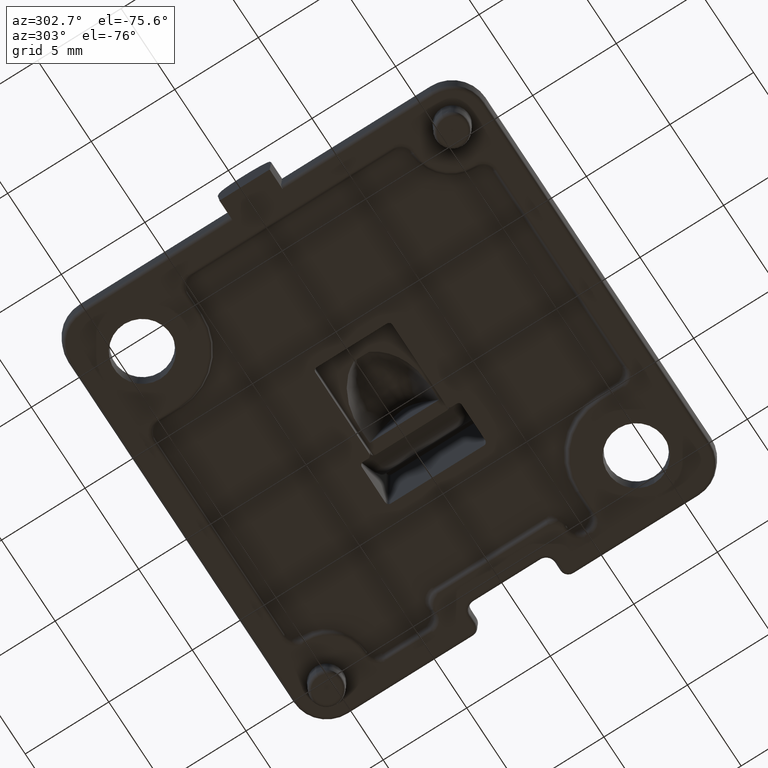
[diagram: clean part render]
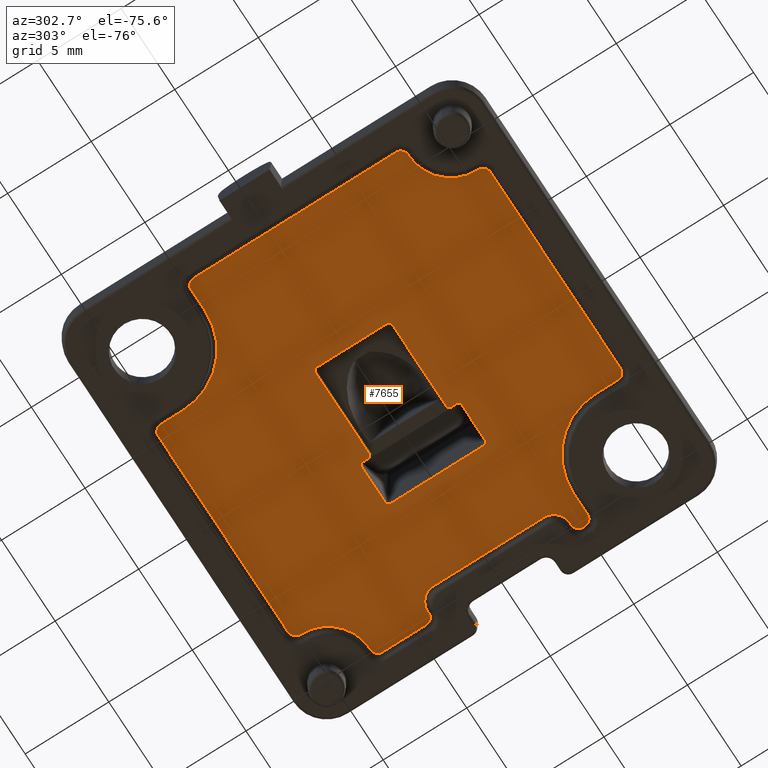
[diagram: same view with one face highlighted and labeled with its STEP entity id]
A machine part, auxiliary view. The second image highlights one B-rep face of the part: STEP entity #7655.
In plain terms, the highlighted planar face has unit normal (0, 0, 1).
Its self-contained STEP definition (entity closure, byte-faithful):
#4 = EDGE_CURVE ( 'NONE', #20, #4934, #1062, .T. ) ;
#9 = EDGE_CURVE ( 'NONE', #4079, #2434, #4165, .T. ) ;
#20 = VERTEX_POINT ( 'NONE', #2488 ) ;
#34 = VECTOR ( 'NONE', #7672, 1000.000000000000000 ) ;
#38 = ORIENTED_EDGE ( 'NONE', *, *, #629, .T. ) ;
#64 = LINE ( 'NONE', #5258, #2954 ) ;
#74 = CARTESIAN_POINT ( 'NONE',  ( 10.74810157545070800, -4.798375703292113500, 0.2999999999999999900 ) ) ;
#103 = EDGE_CURVE ( 'NONE', #7394, #1566, #3966, .T. ) ;
#119 = DIRECTION ( 'NONE',  ( -0.0000000000000000000, -0.0000000000000000000, -1.000000000000000000 ) ) ;
#193 = VERTEX_POINT ( 'NONE', #3403 ) ;
#242 =( BOUNDED_CURVE ( )  B_SPLINE_CURVE ( 3, ( #4660, #7163, #368, #4692 ),
 .UNSPECIFIED., .F., .F. ) 
 B_SPLINE_CURVE_WITH_KNOTS ( ( 4, 4 ),
 ( 2.356803477777896600, 3.926381829401569300 ),
 .UNSPECIFIED. ) 
 CURVE ( )  GEOMETRIC_REPRESENTATION_ITEM ( )  RATIONAL_B_SPLINE_CURVE ( ( 1.000000000000000000, 0.8050248461936601000, 0.8050248461936601000, 1.000000000000000000 ) ) 
 REPRESENTATION_ITEM ( '' )  );
#274 = DIRECTION ( 'NONE',  ( 0.0000000000000000000, -1.000000000000000000, 0.0000000000000000000 ) ) ;
#281 = DIRECTION ( 'NONE',  ( -1.000000000000000000, 0.0000000000000000000, 0.0000000000000000000 ) ) ;
#309 = CARTESIAN_POINT ( 'NONE',  ( 4.473858220888230300, -2.789645603748657000, 0.2999999999999999900 ) ) ;
#310 = VERTEX_POINT ( 'NONE', #7929 ) ;
#324 = CARTESIAN_POINT ( 'NONE',  ( 5.248101575450712100, -10.29837570329211600, 0.2999999999999999900 ) ) ;
#340 = CARTESIAN_POINT ( 'NONE',  ( 10.74810157545070900, -9.000000000000000000, 0.2999999999999999900 ) ) ;
#368 = CARTESIAN_POINT ( 'NONE',  ( 4.391095489464934300, -2.989523769152476100, 0.2999999999999999900 ) ) ;
#373 = EDGE_CURVE ( 'NONE', #613, #3506, #7417, .T. ) ;
#378 = EDGE_CURVE ( 'NONE', #908, #20, #4527, .T. ) ;
#393 = CARTESIAN_POINT ( 'NONE',  ( 10.56188542974829200, -4.251898424549294100, 0.3000000000000000400 ) ) ;
#405 = CARTESIAN_POINT ( 'NONE',  ( 7.748101575450713900, 10.56188542974829400, 0.2999999999999999900 ) ) ;
#442 = ORIENTED_EDGE ( 'NONE', *, *, #6961, .F. ) ;
#477 = CARTESIAN_POINT ( 'NONE',  ( 1.700000000000000000, 2.300000000000001600, 0.2999999999999999300 ) ) ;
#483 = VECTOR ( 'NONE', #745, 1000.000000000000000 ) ;
#529 = VECTOR ( 'NONE', #851, 1000.000000000000000 ) ;
#537 = EDGE_LOOP ( 'NONE', ( #7978, #1444, #719, #38, #1363, #5778, #3308, #2785, #4521, #7425, #6025, #5567, #2655, #2808, #4359, #5274, #1475, #4467, #641, #1281, #4061, #2149, #7232, #4175, #6928, #7230, #986, #4173, #6544, #1099, #983, #3533 ) ) ;
#582 = CARTESIAN_POINT ( 'NONE',  ( -10.74810157545070900, -7.561885429748292300, 0.2999999999999999300 ) ) ;
#597 = ORIENTED_EDGE ( 'NONE', *, *, #6666, .F. ) ;
#603 = CARTESIAN_POINT ( 'NONE',  ( -7.561885429748291400, -10.74810157545071300, 0.3000000000000000400 ) ) ;
#611 = LINE ( 'NONE', #6319, #2243 ) ;
#613 = VERTEX_POINT ( 'NONE', #4632 ) ;
#617 = CARTESIAN_POINT ( 'NONE',  ( 1.700000000000000000, -2.299999999999998000, 0.2999999999999999300 ) ) ;
#621 = CARTESIAN_POINT ( 'NONE',  ( 9.248101575450709400, 3.302477138881150200, 0.2999999999999999900 ) ) ;
#624 = DIRECTION ( 'NONE',  ( -1.000000000000000000, 0.0000000000000000000, 0.0000000000000000000 ) ) ;
#629 = EDGE_CURVE ( 'NONE', #5831, #886, #6592, .T. ) ;
#636 = DIRECTION ( 'NONE',  ( 0.0000000000000000000, 0.0000000000000000000, 1.000000000000000000 ) ) ;
#641 = ORIENTED_EDGE ( 'NONE', *, *, #7528, .T. ) ;
#647 = CARTESIAN_POINT ( 'NONE',  ( 9.000000000000007100, 7.748101575450706800, 0.2999999999999999900 ) ) ;
#656 = CARTESIAN_POINT ( 'NONE',  ( -4.798375703292118800, 10.74810157545070900, 0.2999999999999999900 ) ) ;
#664 = CARTESIAN_POINT ( 'NONE',  ( -7.748101575450707700, -10.29837570329211800, 0.2999999999999999900 ) ) ;
#678 = ORIENTED_EDGE ( 'NONE', *, *, #5243, .F. ) ;
#685 = CARTESIAN_POINT ( 'NONE',  ( 10.29837570329211400, -5.248101575450706800, 0.2999999999999999900 ) ) ;
#717 = VECTOR ( 'NONE', #5783, 1000.000000000000000 ) ;
#719 = ORIENTED_EDGE ( 'NONE', *, *, #5925, .T. ) ;
#745 = DIRECTION ( 'NONE',  ( -1.000000000000000000, -2.569960705150824400E-016, 0.0000000000000000000 ) ) ;
#748 = EDGE_CURVE ( 'NONE', #4751, #3114, #5416, .T. ) ;
#847 = CARTESIAN_POINT ( 'NONE',  ( 9.000000000000007100, -4.251898424549293200, 0.2999999999999999900 ) ) ;
#851 = DIRECTION ( 'NONE',  ( -1.000000000000000000, -2.312964634635741100E-015, 0.0000000000000000000 ) ) ;
#854 = EDGE_CURVE ( 'NONE', #310, #3388, #1792, .T. ) ;
#877 = CARTESIAN_POINT ( 'NONE',  ( 2.099999999999954800, 2.989523769152475600, 0.2999999999999999900 ) ) ;
#886 = VERTEX_POINT ( 'NONE', #4425 ) ;
#893 = VERTEX_POINT ( 'NONE', #5049 ) ;
#895 = EDGE_CURVE ( 'NONE', #2333, #1944, #6132, .T. ) ;
#904 = VECTOR ( 'NONE', #7685, 1000.000000000000000 ) ;
#908 = VERTEX_POINT ( 'NONE', #5708 ) ;
#921 = VECTOR ( 'NONE', #6392, 1000.000000000000000 ) ;
#947 = CARTESIAN_POINT ( 'NONE',  ( 5.248101575450712100, -10.56188542974828900, 0.2999999999999999900 ) ) ;
#948 = CARTESIAN_POINT ( 'NONE',  ( 1.899999999999999900, 2.789401860292710600, 0.2999999999999999300 ) ) ;
#973 = CARTESIAN_POINT ( 'NONE',  ( -10.29837570329211800, 5.248101575450708500, 0.2999999999999999900 ) ) ;
#983 = ORIENTED_EDGE ( 'NONE', *, *, #5249, .T. ) ;
#986 = ORIENTED_EDGE ( 'NONE', *, *, #103, .T. ) ;
#1018 = CARTESIAN_POINT ( 'NONE',  ( 10.74810157545070900, -4.701624296707886500, 0.2999999999999999900 ) ) ;
#1049 = CARTESIAN_POINT ( 'NONE',  ( 4.273980055484411600, -2.989523769152476100, 0.3000000000000000400 ) ) ;
#1062 = LINE ( 'NONE', #8042, #7465 ) ;
#1081 = CARTESIAN_POINT ( 'NONE',  ( 10.29837570329211400, -5.248101575450706800, 0.2999999999999999900 ) ) ;
#1092 = FACE_BOUND ( 'NONE', #2413, .T. ) ;
#1099 = ORIENTED_EDGE ( 'NONE', *, *, #2070, .T. ) ;
#1111 = DIRECTION ( 'NONE',  ( -0.0000000000000000000, -0.0000000000000000000, -1.000000000000000000 ) ) ;
#1120 = VECTOR ( 'NONE', #7637, 1000.000000000000000 ) ;
#1177 = VERTEX_POINT ( 'NONE', #1018 ) ;
#1179 = VECTOR ( 'NONE', #3785, 1000.000000000000000 ) ;
#1193 = CARTESIAN_POINT ( 'NONE',  ( 1.899999999999999900, -2.789401860292711500, 0.2999999999999999900 ) ) ;
#1194 = VERTEX_POINT ( 'NONE', #4745 ) ;
#1212 = CARTESIAN_POINT ( 'NONE',  ( -3.500000000000000000, -2.099999999999999600, 0.2999999999999999300 ) ) ;
#1222 = CARTESIAN_POINT ( 'NONE',  ( 9.248101575450707700, -3.302477138881151600, 0.2999999999999999900 ) ) ;
#1231 = CARTESIAN_POINT ( 'NONE',  ( 1.700000000000000000, -2.499999999999998200, 0.2999999999999999900 ) ) ;
#1260 = DIRECTION ( 'NONE',  ( 1.000000000000000000, 0.0000000000000000000, -0.0000000000000000000 ) ) ;
#1280 = FACE_OUTER_BOUND ( 'NONE', #537, .T. ) ;
#1281 = ORIENTED_EDGE ( 'NONE', *, *, #3046, .T. ) ;
#1336 = CARTESIAN_POINT ( 'NONE',  ( 10.74810157545071300, 4.438114570251709500, 0.3000000000000000400 ) ) ;
#1342 = EDGE_CURVE ( 'NONE', #5932, #4277, #1881, .T. ) ;
#1348 = EDGE_CURVE ( 'NONE', #893, #7288, #1530, .T. ) ;
#1363 = ORIENTED_EDGE ( 'NONE', *, *, #4157, .T. ) ;
#1374 = CARTESIAN_POINT ( 'NONE',  ( 9.248101575450709400, 3.302477138881150200, 0.2999999999999999900 ) ) ;
#1377 = VECTOR ( 'NONE', #1260, 1000.000000000000000 ) ;
#1429 = CARTESIAN_POINT ( 'NONE',  ( 10.25000000000000700, 10.24999999999999800, 0.2999999999999999900 ) ) ;
#1444 = ORIENTED_EDGE ( 'NONE', *, *, #2736, .T. ) ;
#1461 = CARTESIAN_POINT ( 'NONE',  ( -10.25000000000000000, -7.748101575450707700, 0.2999999999999999900 ) ) ;
#1475 = ORIENTED_EDGE ( 'NONE', *, *, #7993, .T. ) ;
#1530 =( BOUNDED_CURVE ( )  B_SPLINE_CURVE ( 3, ( #4386, #1924, #3182, #7542 ),
 .UNSPECIFIED., .F., .F. ) 
 B_SPLINE_CURVE_WITH_KNOTS ( ( 4, 4 ),
 ( 2.356803477777956500, 3.926381829401627900 ),
 .UNSPECIFIED. ) 
 CURVE ( )  GEOMETRIC_REPRESENTATION_ITEM ( )  RATIONAL_B_SPLINE_CURVE ( ( 1.000000000000000000, 0.8050248461936604400, 0.8050248461936604400, 1.000000000000000000 ) ) 
 REPRESENTATION_ITEM ( '' )  );
#1554 = CARTESIAN_POINT ( 'NONE',  ( 4.798375703292118800, -10.74810157545070900, 0.2999999999999999900 ) ) ;
#1566 = VERTEX_POINT ( 'NONE', #3326 ) ;
#1586 = VERTEX_POINT ( 'NONE', #877 ) ;
#1597 = VECTOR ( 'NONE', #2751, 1000.000000000000000 ) ;
#1684 = CARTESIAN_POINT ( 'NONE',  ( -4.798375703292118800, 10.74810157545070900, 0.2999999999999999900 ) ) ;
#1716 = CARTESIAN_POINT ( 'NONE',  ( 2.099999999999954800, 2.989523769152475600, 0.2999999999999999900 ) ) ;
#1717 = CARTESIAN_POINT ( 'NONE',  ( 10.74810157545070900, 4.701624296707885600, 0.2999999999999999900 ) ) ;
#1731 = CARTESIAN_POINT ( 'NONE',  ( 1.899999999999999900, -2.499999999999998200, 0.2999999999999999900 ) ) ;
#1770 = EDGE_CURVE ( 'NONE', #5953, #6638, #4044, .T. ) ;
#1792 =( BOUNDED_CURVE ( )  B_SPLINE_CURVE ( 3, ( #7427, #1810, #4331, #621 ),
 .UNSPECIFIED., .F., .T. ) 
 B_SPLINE_CURVE_WITH_KNOTS ( ( 4, 4 ),
 ( 2.356803477777957000, 3.926381829401630200 ),
 .UNSPECIFIED. ) 
 CURVE ( )  GEOMETRIC_REPRESENTATION_ITEM ( )  RATIONAL_B_SPLINE_CURVE ( ( 1.000000000000000000, 0.8050248461936597700, 0.8050248461936597700, 1.000000000000000000 ) ) 
 REPRESENTATION_ITEM ( '' )  );
#1806 = ORIENTED_EDGE ( 'NONE', *, *, #4731, .T. ) ;
#1810 = CARTESIAN_POINT ( 'NONE',  ( 9.641224549711367300, 4.251898424549293200, 0.2999999999999999900 ) ) ;
#1838 = CARTESIAN_POINT ( 'NONE',  ( -7.748101575450707700, -10.29837570329211800, 0.2999999999999999900 ) ) ;
#1839 = DIRECTION ( 'NONE',  ( 1.000000000000000000, 0.0000000000000000000, 0.0000000000000000000 ) ) ;
#1881 =( BOUNDED_CURVE ( )  B_SPLINE_CURVE ( 3, ( #74, #3686, #7486, #685 ),
 .UNSPECIFIED., .F., .T. ) 
 B_SPLINE_CURVE_WITH_KNOTS ( ( 4, 4 ),
 ( 2.356803477777958300, 3.926381829401629700 ),
 .UNSPECIFIED. ) 
 CURVE ( )  GEOMETRIC_REPRESENTATION_ITEM ( )  RATIONAL_B_SPLINE_CURVE ( ( 1.000000000000000000, 0.8050248461936604400, 0.8050248461936604400, 1.000000000000000000 ) ) 
 REPRESENTATION_ITEM ( '' )  );
#1889 = CARTESIAN_POINT ( 'NONE',  ( 4.473858220888230300, 2.906761037729179300, 0.2999999999999999300 ) ) ;
#1924 = CARTESIAN_POINT ( 'NONE',  ( 10.56188542974829200, 7.748101575450705900, 0.3000000000000000400 ) ) ;
#1936 = VERTEX_POINT ( 'NONE', #1684 ) ;
#1944 = VERTEX_POINT ( 'NONE', #3553 ) ;
#1959 = EDGE_CURVE ( 'NONE', #4196, #1586, #6674, .T. ) ;
#1967 = DIRECTION ( 'NONE',  ( 0.0000000000000000000, 1.000000000000000000, -0.0000000000000000000 ) ) ;
#1997 = CARTESIAN_POINT ( 'NONE',  ( 7.748101575450715700, 10.29837570329211600, 0.2999999999999999900 ) ) ;
#2003 = CARTESIAN_POINT ( 'NONE',  ( 5.248101575450712100, -10.29837570329211600, 0.2999999999999999900 ) ) ;
#2022 = EDGE_CURVE ( 'NONE', #1936, #3498, #7446, .T. ) ;
#2052 = DIRECTION ( 'NONE',  ( 1.000000000000000000, 0.0000000000000000000, 0.0000000000000000000 ) ) ;
#2070 = EDGE_CURVE ( 'NONE', #6532, #2148, #5603, .T. ) ;
#2078 = ORIENTED_EDGE ( 'NONE', *, *, #3828, .F. ) ;
#2086 = CARTESIAN_POINT ( 'NONE',  ( 9.000000000000003600, -7.748101575450663200, 0.2999999999999999900 ) ) ;
#2144 = LINE ( 'NONE', #340, #3601 ) ;
#2148 = VERTEX_POINT ( 'NONE', #1461 ) ;
#2149 = ORIENTED_EDGE ( 'NONE', *, *, #1342, .T. ) ;
#2207 = DIRECTION ( 'NONE',  ( -1.301042606982604100E-015, -1.000000000000000000, 0.0000000000000000000 ) ) ;
#2229 = ORIENTED_EDGE ( 'NONE', *, *, #2476, .T. ) ;
#2230 = CARTESIAN_POINT ( 'NONE',  ( 7.561885429748299400, 10.74810157545070800, 0.2999999999999999900 ) ) ;
#2243 = VECTOR ( 'NONE', #1967, 1000.000000000000000 ) ;
#2245 = CARTESIAN_POINT ( 'NONE',  ( 10.74810157545071300, -4.438114570251710400, 0.3000000000000000400 ) ) ;
#2333 = VERTEX_POINT ( 'NONE', #1717 ) ;
#2335 = LINE ( 'NONE', #4153, #5451 ) ;
#2401 = CARTESIAN_POINT ( 'NONE',  ( 4.473858220888231200, -3.000000000000000000, 0.2999999999999999300 ) ) ;
#2402 = CARTESIAN_POINT ( 'NONE',  ( 1.982842712474619100, -2.989523769152476100, 0.2999999999999999300 ) ) ;
#2406 = DIRECTION ( 'NONE',  ( 1.000000000000000000, 0.0000000000000000000, -0.0000000000000000000 ) ) ;
#2413 = EDGE_LOOP ( 'NONE', ( #7493, #6983, #1806, #2078, #7087, #2738, #442, #2229, #678, #3029, #7305, #597, #7914, #3995, #6787, #8027 ) ) ;
#2425 = CARTESIAN_POINT ( 'NONE',  ( -10.56188542974828900, -7.748101575450709400, 0.2999999999999999300 ) ) ;
#2429 = CARTESIAN_POINT ( 'NONE',  ( -5.248101575450712100, 10.29837570329211400, 0.2999999999999999900 ) ) ;
#2434 = VERTEX_POINT ( 'NONE', #3024 ) ;
#2452 = CARTESIAN_POINT ( 'NONE',  ( 1.899999999999999900, -2.789401860292711500, 0.2999999999999999900 ) ) ;
#2476 = EDGE_CURVE ( 'NONE', #6246, #5562, #8025, .T. ) ;
#2488 = CARTESIAN_POINT ( 'NONE',  ( -10.74810157545070900, -7.298375703292114400, 0.2999999999999999900 ) ) ;
#2520 = LINE ( 'NONE', #2705, #904 ) ;
#2538 = AXIS2_PLACEMENT_3D ( 'NONE', #1231, #5569, #1839 ) ;
#2575 = CARTESIAN_POINT ( 'NONE',  ( 10.29837570329211600, 4.251898424549293200, 0.2999999999999999900 ) ) ;
#2635 = EDGE_CURVE ( 'NONE', #2913, #7686, #3339, .T. ) ;
#2655 = ORIENTED_EDGE ( 'NONE', *, *, #4525, .T. ) ;
#2663 = CARTESIAN_POINT ( 'NONE',  ( 10.74810157545070900, -9.000000000000000000, 0.2999999999999999900 ) ) ;
#2693 = DIRECTION ( 'NONE',  ( 1.000000000000000000, 0.0000000000000000000, -0.0000000000000000000 ) ) ;
#2705 = CARTESIAN_POINT ( 'NONE',  ( -7.748101575450706800, -9.000000000000000000, 0.2999999999999999900 ) ) ;
#2736 = EDGE_CURVE ( 'NONE', #4934, #7471, #4518, .T. ) ;
#2738 = ORIENTED_EDGE ( 'NONE', *, *, #3354, .F. ) ;
#2739 = LINE ( 'NONE', #6408, #717 ) ;
#2740 = EDGE_CURVE ( 'NONE', #2434, #5163, #64, .T. ) ;
#2751 = DIRECTION ( 'NONE',  ( 0.0000000000000000000, 1.000000000000000000, -0.0000000000000000000 ) ) ;
#2769 = CARTESIAN_POINT ( 'NONE',  ( 9.000000000000000000, 5.248101575450718300, 0.2999999999999999900 ) ) ;
#2785 = ORIENTED_EDGE ( 'NONE', *, *, #4246, .T. ) ;
#2808 = ORIENTED_EDGE ( 'NONE', *, *, #895, .T. ) ;
#2913 = VERTEX_POINT ( 'NONE', #6418 ) ;
#2926 = CARTESIAN_POINT ( 'NONE',  ( 1.899999999999999900, 2.789401860292710600, 0.2999999999999999300 ) ) ;
#2931 = DIRECTION ( 'NONE',  ( -1.000000000000000000, -1.376764663473656700E-016, 0.0000000000000000000 ) ) ;
#2954 = VECTOR ( 'NONE', #2207, 1000.000000000000000 ) ;
#2964 = CARTESIAN_POINT ( 'NONE',  ( 1.899999999999999900, -3.000000000000000000, 0.2999999999999999900 ) ) ;
#3024 = CARTESIAN_POINT ( 'NONE',  ( 5.248101575450713900, -9.000000000000000000, 0.2999999999999999900 ) ) ;
#3029 = ORIENTED_EDGE ( 'NONE', *, *, #373, .F. ) ;
#3034 = VECTOR ( 'NONE', #2931, 1000.000000000000000 ) ;
#3046 = EDGE_CURVE ( 'NONE', #4661, #1177, #3312, .T. ) ;
#3047 = CARTESIAN_POINT ( 'NONE',  ( 7.298375703292122400, 10.74810157545070800, 0.2999999999999999900 ) ) ;
#3069 = CARTESIAN_POINT ( 'NONE',  ( 0.0000000000000000000, -2.989523769152476100, 0.2999999999999999900 ) ) ;
#3088 =( BOUNDED_CURVE ( )  B_SPLINE_CURVE ( 3, ( #324, #947, #5278, #1554 ),
 .UNSPECIFIED., .F., .F. ) 
 B_SPLINE_CURVE_WITH_KNOTS ( ( 4, 4 ),
 ( 2.356803477777955600, 3.926381829401629300 ),
 .UNSPECIFIED. ) 
 CURVE ( )  GEOMETRIC_REPRESENTATION_ITEM ( )  RATIONAL_B_SPLINE_CURVE ( ( 1.000000000000000000, 0.8050248461936597700, 0.8050248461936597700, 1.000000000000000000 ) ) 
 REPRESENTATION_ITEM ( '' )  );
#3089 = AXIS2_PLACEMENT_3D ( 'NONE', #4820, #1111, #5440 ) ;
#3114 = VERTEX_POINT ( 'NONE', #477 ) ;
#3174 = CARTESIAN_POINT ( 'NONE',  ( 4.798375703292118800, -10.74810157545070900, 0.2999999999999999900 ) ) ;
#3182 = CARTESIAN_POINT ( 'NONE',  ( 10.74810157545071300, 7.561885429748291400, 0.3000000000000000400 ) ) ;
#3218 = AXIS2_PLACEMENT_3D ( 'NONE', #1429, #5780, #2052 ) ;
#3234 = LINE ( 'NONE', #3367, #1597 ) ;
#3250 = EDGE_CURVE ( 'NONE', #1566, #4867, #6128, .T. ) ;
#3270 = DIRECTION ( 'NONE',  ( 0.0000000000000000000, 0.0000000000000000000, 1.000000000000000000 ) ) ;
#3280 = CARTESIAN_POINT ( 'NONE',  ( 9.000000000000007100, -5.248101575450706800, 0.2999999999999999900 ) ) ;
#3307 = LINE ( 'NONE', #7052, #34 ) ;
#3308 = ORIENTED_EDGE ( 'NONE', *, *, #2022, .T. ) ;
#3312 =( BOUNDED_CURVE ( )  B_SPLINE_CURVE ( 3, ( #5950, #393, #2245, #6608 ),
 .UNSPECIFIED., .F., .F. ) 
 B_SPLINE_CURVE_WITH_KNOTS ( ( 4, 4 ),
 ( 2.356803477777956500, 3.926381829401627900 ),
 .UNSPECIFIED. ) 
 CURVE ( )  GEOMETRIC_REPRESENTATION_ITEM ( )  RATIONAL_B_SPLINE_CURVE ( ( 1.000000000000000000, 0.8050248461936604400, 0.8050248461936604400, 1.000000000000000000 ) ) 
 REPRESENTATION_ITEM ( '' )  );
#3326 = CARTESIAN_POINT ( 'NONE',  ( -7.298375703292114400, -10.74810157545071100, 0.2999999999999999900 ) ) ;
#3339 = CIRCLE ( 'NONE', #3218, 2.501898424549292300 ) ;
#3354 = EDGE_CURVE ( 'NONE', #193, #6231, #6456, .T. ) ;
#3367 = CARTESIAN_POINT ( 'NONE',  ( -5.248101575450711200, -9.000000000000000000, 0.2999999999999999900 ) ) ;
#3388 = VERTEX_POINT ( 'NONE', #1374 ) ;
#3395 = CARTESIAN_POINT ( 'NONE',  ( -9.000000000000005300, 9.000000000000001800, 0.2999999999999999900 ) ) ;
#3403 = CARTESIAN_POINT ( 'NONE',  ( -3.299999999999999800, -2.299999999999999400, 0.2999999999999999300 ) ) ;
#3427 = CARTESIAN_POINT ( 'NONE',  ( -10.74810157545071300, 5.061885429748292300, 0.3000000000000000400 ) ) ;
#3450 = DIRECTION ( 'NONE',  ( -0.0000000000000000000, -0.0000000000000000000, -1.000000000000000000 ) ) ;
#3498 = VERTEX_POINT ( 'NONE', #3047 ) ;
#3504 = LINE ( 'NONE', #847, #4961 ) ;
#3506 = VERTEX_POINT ( 'NONE', #2452 ) ;
#3510 = EDGE_CURVE ( 'NONE', #7975, #6323, #7203, .T. ) ;
#3524 = EDGE_CURVE ( 'NONE', #3901, #613, #5870, .T. ) ;
#3533 = ORIENTED_EDGE ( 'NONE', *, *, #378, .T. ) ;
#3553 = CARTESIAN_POINT ( 'NONE',  ( 10.29837570329211600, 4.251898424549293200, 0.2999999999999999900 ) ) ;
#3561 = EDGE_CURVE ( 'NONE', #1194, #5953, #7155, .T. ) ;
#3601 = VECTOR ( 'NONE', #6548, 1000.000000000000000 ) ;
#3653 = CARTESIAN_POINT ( 'NONE',  ( -10.29837570329211400, -7.748101575450707700, 0.2999999999999999900 ) ) ;
#3686 = CARTESIAN_POINT ( 'NONE',  ( 10.74810157545071300, -5.061885429748289600, 0.3000000000000000400 ) ) ;
#3731 = CARTESIAN_POINT ( 'NONE',  ( 4.273980055484410700, 2.989523769152475600, 0.2999999999999999300 ) ) ;
#3785 = DIRECTION ( 'NONE',  ( -1.000000000000000000, -2.065146995210484700E-016, 0.0000000000000000000 ) ) ;
#3799 = CARTESIAN_POINT ( 'NONE',  ( -3.299999999999999800, 2.300000000000000700, 0.2999999999999999300 ) ) ;
#3815 = CARTESIAN_POINT ( 'NONE',  ( -3.299999999999999800, -2.099999999999999600, 0.2999999999999999300 ) ) ;
#3828 = EDGE_CURVE ( 'NONE', #6594, #6441, #7722, .T. ) ;
#3901 = VERTEX_POINT ( 'NONE', #1049 ) ;
#3951 = EDGE_CURVE ( 'NONE', #4751, #4196, #7339, .T. ) ;
#3966 = LINE ( 'NONE', #6324, #483 ) ;
#3972 = CARTESIAN_POINT ( 'NONE',  ( 9.248101575450707700, -3.302477138881151600, 0.2999999999999999900 ) ) ;
#3995 = ORIENTED_EDGE ( 'NONE', *, *, #3561, .F. ) ;
#4035 = DIRECTION ( 'NONE',  ( 1.000000000000000000, 0.0000000000000000000, 0.0000000000000000000 ) ) ;
#4044 = LINE ( 'NONE', #2401, #7152 ) ;
#4061 = ORIENTED_EDGE ( 'NONE', *, *, #6658, .T. ) ;
#4079 = VERTEX_POINT ( 'NONE', #7026 ) ;
#4093 = LINE ( 'NONE', #647, #1377 ) ;
#4113 = DIRECTION ( 'NONE',  ( 1.000000000000000000, 0.0000000000000000000, -0.0000000000000000000 ) ) ;
#4138 = VECTOR ( 'NONE', #2406, 1000.000000000000000 ) ;
#4153 = CARTESIAN_POINT ( 'NONE',  ( 0.0000000000000000000, 2.989523769152475600, 0.2999999999999999900 ) ) ;
#4157 = EDGE_CURVE ( 'NONE', #886, #7281, #3234, .T. ) ;
#4165 = CIRCLE ( 'NONE', #6868, 3.751898424549291500 ) ;
#4173 = ORIENTED_EDGE ( 'NONE', *, *, #3250, .T. ) ;
#4175 = ORIENTED_EDGE ( 'NONE', *, *, #9, .T. ) ;
#4183 = DIRECTION ( 'NONE',  ( -1.000000000000000000, -0.0000000000000000000, -0.0000000000000000000 ) ) ;
#4196 = VERTEX_POINT ( 'NONE', #948 ) ;
#4220 = LINE ( 'NONE', #3280, #1120 ) ;
#4246 = EDGE_CURVE ( 'NONE', #3498, #7878, #6471, .T. ) ;
#4258 = CARTESIAN_POINT ( 'NONE',  ( 9.000000000000007100, 10.74810157545070900, 0.2999999999999999900 ) ) ;
#4277 = VERTEX_POINT ( 'NONE', #1081 ) ;
#4331 = CARTESIAN_POINT ( 'NONE',  ( 9.248101575450707700, 3.858775450288634400, 0.2999999999999999900 ) ) ;
#4340 = CARTESIAN_POINT ( 'NONE',  ( 9.000000000000007100, -9.000000000000000000, 0.2999999999999999900 ) ) ;
#4358 = CARTESIAN_POINT ( 'NONE',  ( -5.061885429748296700, 10.74810157545070900, 0.2999999999999999300 ) ) ;
#4359 = ORIENTED_EDGE ( 'NONE', *, *, #5312, .T. ) ;
#4386 = CARTESIAN_POINT ( 'NONE',  ( 10.29837570329211600, 7.748101575450705900, 0.2999999999999999900 ) ) ;
#4425 = CARTESIAN_POINT ( 'NONE',  ( -5.248101575450712100, 9.000000000000001800, 0.2999999999999999900 ) ) ;
#4437 = DIRECTION ( 'NONE',  ( 1.000000000000000000, 0.0000000000000000000, 0.0000000000000000000 ) ) ;
#4463 = CARTESIAN_POINT ( 'NONE',  ( 10.25000000000000700, 7.748101575450705900, 0.2999999999999999900 ) ) ;
#4467 = ORIENTED_EDGE ( 'NONE', *, *, #3510, .T. ) ;
#4518 =( BOUNDED_CURVE ( )  B_SPLINE_CURVE ( 3, ( #4683, #3427, #6539, #973 ),
 .UNSPECIFIED., .F., .F. ) 
 B_SPLINE_CURVE_WITH_KNOTS ( ( 4, 4 ),
 ( 2.356803477777958700, 3.926381829401630200 ),
 .UNSPECIFIED. ) 
 CURVE ( )  GEOMETRIC_REPRESENTATION_ITEM ( )  RATIONAL_B_SPLINE_CURVE ( ( 1.000000000000000000, 0.8050248461936604400, 0.8050248461936604400, 1.000000000000000000 ) ) 
 REPRESENTATION_ITEM ( '' )  );
#4519 = EDGE_CURVE ( 'NONE', #4277, #4079, #4220, .T. ) ;
#4521 = ORIENTED_EDGE ( 'NONE', *, *, #7530, .T. ) ;
#4525 = EDGE_CURVE ( 'NONE', #7288, #2333, #6459, .T. ) ;
#4527 =( BOUNDED_CURVE ( )  B_SPLINE_CURVE ( 3, ( #3653, #2425, #582, #4905 ),
 .UNSPECIFIED., .F., .T. ) 
 B_SPLINE_CURVE_WITH_KNOTS ( ( 4, 4 ),
 ( 2.356803477777953800, 3.926381829401631100 ),
 .UNSPECIFIED. ) 
 CURVE ( )  GEOMETRIC_REPRESENTATION_ITEM ( )  RATIONAL_B_SPLINE_CURVE ( ( 1.000000000000000000, 0.8050248461936588800, 0.8050248461936588800, 1.000000000000000000 ) ) 
 REPRESENTATION_ITEM ( '' )  );
#4599 = CARTESIAN_POINT ( 'NONE',  ( 9.248101575450709400, -9.000000000000000000, 0.2999999999999999900 ) ) ;
#4627 = DIRECTION ( 'NONE',  ( 1.000000000000000000, 4.336808689942022200E-016, -0.0000000000000000000 ) ) ;
#4632 = CARTESIAN_POINT ( 'NONE',  ( 2.100000000000000100, -2.989523769152476100, 0.2999999999999999300 ) ) ;
#4660 = CARTESIAN_POINT ( 'NONE',  ( 4.473858220888230300, -2.789645603748657000, 0.2999999999999999900 ) ) ;
#4661 = VERTEX_POINT ( 'NONE', #7829 ) ;
#4683 = CARTESIAN_POINT ( 'NONE',  ( -10.74810157545071100, 4.798375703292116200, 0.2999999999999999900 ) ) ;
#4690 = AXIS2_PLACEMENT_3D ( 'NONE', #7177, #3450, #7802 ) ;
#4692 = CARTESIAN_POINT ( 'NONE',  ( 4.273980055484411600, -2.989523769152476100, 0.3000000000000000400 ) ) ;
#4731 = EDGE_CURVE ( 'NONE', #3114, #6441, #8004, .T. ) ;
#4732 = CARTESIAN_POINT ( 'NONE',  ( 7.748101575450715700, 10.29837570329211600, 0.2999999999999999900 ) ) ;
#4745 = CARTESIAN_POINT ( 'NONE',  ( 4.273980055484410700, 2.989523769152475600, 0.2999999999999999300 ) ) ;
#4751 = VERTEX_POINT ( 'NONE', #5493 ) ;
#4814 = CARTESIAN_POINT ( 'NONE',  ( -3.166558725989411600E-016, 2.300000000000001200, 0.2999999999999999300 ) ) ;
#4820 = CARTESIAN_POINT ( 'NONE',  ( 1.700000000000000000, 2.500000000000001800, 0.2999999999999999300 ) ) ;
#4867 = VERTEX_POINT ( 'NONE', #664 ) ;
#4899 = CARTESIAN_POINT ( 'NONE',  ( 2.100000000000000100, -2.989523769152476100, 0.2999999999999999300 ) ) ;
#4905 = CARTESIAN_POINT ( 'NONE',  ( -10.74810157545070900, -7.298375703292114400, 0.2999999999999999900 ) ) ;
#4921 = CARTESIAN_POINT ( 'NONE',  ( 10.74810157545070900, 7.298375703292113500, 0.2999999999999999900 ) ) ;
#4934 = VERTEX_POINT ( 'NONE', #5705 ) ;
#4954 = DIRECTION ( 'NONE',  ( 1.000000000000000000, 0.0000000000000000000, 0.0000000000000000000 ) ) ;
#4961 = VECTOR ( 'NONE', #2693, 1000.000000000000000 ) ;
#4970 = CARTESIAN_POINT ( 'NONE',  ( 4.391095489464933400, 2.989523769152475200, 0.2999999999999999300 ) ) ;
#5049 = CARTESIAN_POINT ( 'NONE',  ( 10.29837570329211600, 7.748101575450705900, 0.2999999999999999900 ) ) ;
#5163 = VERTEX_POINT ( 'NONE', #2003 ) ;
#5243 = EDGE_CURVE ( 'NONE', #3506, #5562, #2739, .T. ) ;
#5249 = EDGE_CURVE ( 'NONE', #2148, #908, #5661, .T. ) ;
#5258 = CARTESIAN_POINT ( 'NONE',  ( 5.248101575450713900, -8.999999999999994700, 0.2999999999999999900 ) ) ;
#5273 = LINE ( 'NONE', #7678, #6742 ) ;
#5274 = ORIENTED_EDGE ( 'NONE', *, *, #854, .T. ) ;
#5278 = CARTESIAN_POINT ( 'NONE',  ( 5.061885429748294900, -10.74810157545070900, 0.2999999999999999900 ) ) ;
#5312 = EDGE_CURVE ( 'NONE', #1944, #310, #5273, .T. ) ;
#5359 = AXIS2_PLACEMENT_3D ( 'NONE', #7004, #3270, #7630 ) ;
#5416 = CIRCLE ( 'NONE', #3089, 0.2000000000000000900 ) ;
#5427 = CARTESIAN_POINT ( 'NONE',  ( 1.982842712474594900, 2.989523769152448600, 0.2999999999999998800 ) ) ;
#5440 = DIRECTION ( 'NONE',  ( 1.000000000000000000, 0.0000000000000000000, 0.0000000000000000000 ) ) ;
#5451 = VECTOR ( 'NONE', #4183, 1000.000000000000000 ) ;
#5493 = CARTESIAN_POINT ( 'NONE',  ( 1.899999999999999900, 2.500000000000001800, 0.2999999999999999300 ) ) ;
#5543 = DIRECTION ( 'NONE',  ( -1.284980352575412500E-016, 1.000000000000000000, 0.0000000000000000000 ) ) ;
#5562 = VERTEX_POINT ( 'NONE', #1731 ) ;
#5567 = ORIENTED_EDGE ( 'NONE', *, *, #1348, .T. ) ;
#5568 = CARTESIAN_POINT ( 'NONE',  ( -7.748101575450707700, -10.56188542974829200, 0.3000000000000000400 ) ) ;
#5569 = DIRECTION ( 'NONE',  ( -0.0000000000000000000, -0.0000000000000000000, -1.000000000000000000 ) ) ;
#5603 = CIRCLE ( 'NONE', #5359, 2.501898424549292300 ) ;
#5661 = LINE ( 'NONE', #2086, #529 ) ;
#5686 = CARTESIAN_POINT ( 'NONE',  ( 10.74810157545070900, 4.701624296707885600, 0.2999999999999999900 ) ) ;
#5705 = CARTESIAN_POINT ( 'NONE',  ( -10.74810157545071100, 4.798375703292116200, 0.2999999999999999900 ) ) ;
#5708 = CARTESIAN_POINT ( 'NONE',  ( -10.29837570329211400, -7.748101575450707700, 0.2999999999999999900 ) ) ;
#5721 = CARTESIAN_POINT ( 'NONE',  ( -10.29837570329211800, 5.248101575450708500, 0.2999999999999999900 ) ) ;
#5778 = ORIENTED_EDGE ( 'NONE', *, *, #6913, .T. ) ;
#5780 = DIRECTION ( 'NONE',  ( 0.0000000000000000000, 0.0000000000000000000, 1.000000000000000000 ) ) ;
#5783 = DIRECTION ( 'NONE',  ( 0.0000000000000000000, 1.000000000000000000, -0.0000000000000000000 ) ) ;
#5831 = VERTEX_POINT ( 'NONE', #7068 ) ;
#5853 = LINE ( 'NONE', #2769, #7308 ) ;
#5870 = LINE ( 'NONE', #3069, #7512 ) ;
#5925 = EDGE_CURVE ( 'NONE', #7471, #5831, #5853, .T. ) ;
#5929 = EDGE_CURVE ( 'NONE', #5163, #7394, #3088, .T. ) ;
#5932 = VERTEX_POINT ( 'NONE', #7127 ) ;
#5933 = CARTESIAN_POINT ( 'NONE',  ( 4.473858220888230300, 2.789645603748656600, 0.2999999999999999300 ) ) ;
#5936 = LINE ( 'NONE', #7507, #1179 ) ;
#5950 = CARTESIAN_POINT ( 'NONE',  ( 10.29837570329211400, -4.251898424549293200, 0.2999999999999999900 ) ) ;
#5953 = VERTEX_POINT ( 'NONE', #5933 ) ;
#5965 = CARTESIAN_POINT ( 'NONE',  ( 9.000000000000007100, -9.000000000000000000, 0.2999999999999999900 ) ) ;
#6025 = ORIENTED_EDGE ( 'NONE', *, *, #6248, .T. ) ;
#6079 = DIRECTION ( 'NONE',  ( 0.0000000000000000000, 1.000000000000000000, -0.0000000000000000000 ) ) ;
#6128 =( BOUNDED_CURVE ( )  B_SPLINE_CURVE ( 3, ( #7410, #603, #5568, #1838 ),
 .UNSPECIFIED., .F., .F. ) 
 B_SPLINE_CURVE_WITH_KNOTS ( ( 4, 4 ),
 ( 2.356803477777958300, 3.926381829401629700 ),
 .UNSPECIFIED. ) 
 CURVE ( )  GEOMETRIC_REPRESENTATION_ITEM ( )  RATIONAL_B_SPLINE_CURVE ( ( 1.000000000000000000, 0.8050248461936604400, 0.8050248461936604400, 1.000000000000000000 ) ) 
 REPRESENTATION_ITEM ( '' )  );
#6132 =( BOUNDED_CURVE ( )  B_SPLINE_CURVE ( 3, ( #5686, #1336, #6306, #2575 ),
 .UNSPECIFIED., .F., .F. ) 
 B_SPLINE_CURVE_WITH_KNOTS ( ( 4, 4 ),
 ( 2.356803477777958300, 3.926381829401629700 ),
 .UNSPECIFIED. ) 
 CURVE ( )  GEOMETRIC_REPRESENTATION_ITEM ( )  RATIONAL_B_SPLINE_CURVE ( ( 1.000000000000000000, 0.8050248461936604400, 0.8050248461936604400, 1.000000000000000000 ) ) 
 REPRESENTATION_ITEM ( '' )  );
#6144 = DIRECTION ( 'NONE',  ( -0.0000000000000000000, -1.000000000000000000, 0.0000000000000000000 ) ) ;
#6150 = LINE ( 'NONE', #4599, #7781 ) ;
#6231 = VERTEX_POINT ( 'NONE', #1212 ) ;
#6244 = CARTESIAN_POINT ( 'NONE',  ( 4.473858220888230300, 2.789645603748656600, 0.2999999999999999300 ) ) ;
#6246 = VERTEX_POINT ( 'NONE', #617 ) ;
#6248 = EDGE_CURVE ( 'NONE', #7686, #893, #4093, .T. ) ;
#6288 = CARTESIAN_POINT ( 'NONE',  ( 10.19752286111884800, -4.251898424549293200, 0.2999999999999999900 ) ) ;
#6306 = CARTESIAN_POINT ( 'NONE',  ( 10.56188542974829200, 4.251898424549294100, 0.3000000000000000400 ) ) ;
#6319 = CARTESIAN_POINT ( 'NONE',  ( -3.500000000000000000, 0.0000000000000000000, 0.2999999999999999300 ) ) ;
#6323 = VERTEX_POINT ( 'NONE', #6288 ) ;
#6324 = CARTESIAN_POINT ( 'NONE',  ( 9.000000000000007100, -10.74810157545070900, 0.2999999999999999900 ) ) ;
#6392 = DIRECTION ( 'NONE',  ( 0.0000000000000000000, -1.000000000000000000, 0.0000000000000000000 ) ) ;
#6408 = CARTESIAN_POINT ( 'NONE',  ( 1.899999999999999900, -3.000000000000000000, 0.2999999999999999900 ) ) ;
#6418 = CARTESIAN_POINT ( 'NONE',  ( 7.748101575450715700, 10.24999999999999600, 0.2999999999999999900 ) ) ;
#6441 = VERTEX_POINT ( 'NONE', #3799 ) ;
#6447 = CARTESIAN_POINT ( 'NONE',  ( -7.748101575450707700, -10.25000000000000000, 0.2999999999999999900 ) ) ;
#6456 = CIRCLE ( 'NONE', #7495, 0.2000000000000000900 ) ;
#6459 = LINE ( 'NONE', #2663, #921 ) ;
#6471 =( BOUNDED_CURVE ( )  B_SPLINE_CURVE ( 3, ( #6591, #2230, #405, #4732 ),
 .UNSPECIFIED., .F., .F. ) 
 B_SPLINE_CURVE_WITH_KNOTS ( ( 4, 4 ),
 ( 2.356803477777960500, 3.926381829401628400 ),
 .UNSPECIFIED. ) 
 CURVE ( )  GEOMETRIC_REPRESENTATION_ITEM ( )  RATIONAL_B_SPLINE_CURVE ( ( 1.000000000000000000, 0.8050248461936611000, 0.8050248461936611000, 1.000000000000000000 ) ) 
 REPRESENTATION_ITEM ( '' )  );
#6532 = VERTEX_POINT ( 'NONE', #6447 ) ;
#6539 = CARTESIAN_POINT ( 'NONE',  ( -10.56188542974829200, 5.248101575450707700, 0.3000000000000000400 ) ) ;
#6544 = ORIENTED_EDGE ( 'NONE', *, *, #6557, .T. ) ;
#6548 = DIRECTION ( 'NONE',  ( 0.0000000000000000000, -1.000000000000000000, 0.0000000000000000000 ) ) ;
#6557 = EDGE_CURVE ( 'NONE', #4867, #6532, #2520, .T. ) ;
#6572 = PLANE ( 'NONE',  #7767 ) ;
#6591 = CARTESIAN_POINT ( 'NONE',  ( 7.298375703292122400, 10.74810157545070800, 0.2999999999999999900 ) ) ;
#6592 = CIRCLE ( 'NONE', #7844, 3.751898424549291500 ) ;
#6594 = VERTEX_POINT ( 'NONE', #7710 ) ;
#6608 = CARTESIAN_POINT ( 'NONE',  ( 10.74810157545070900, -4.701624296707886500, 0.2999999999999999900 ) ) ;
#6638 = VERTEX_POINT ( 'NONE', #309 ) ;
#6658 = EDGE_CURVE ( 'NONE', #1177, #5932, #2144, .T. ) ;
#6662 = CARTESIAN_POINT ( 'NONE',  ( 1.900000000000000100, 2.906630560374746900, 0.2999999999999998800 ) ) ;
#6666 = EDGE_CURVE ( 'NONE', #6638, #3901, #242, .T. ) ;
#6674 =( BOUNDED_CURVE ( )  B_SPLINE_CURVE ( 3, ( #2926, #6662, #5427, #1716 ),
 .UNSPECIFIED., .F., .T. ) 
 B_SPLINE_CURVE_WITH_KNOTS ( ( 4, 4 ),
 ( 4.712388980384689700, 6.283185307179358900 ),
 .UNSPECIFIED. ) 
 CURVE ( )  GEOMETRIC_REPRESENTATION_ITEM ( )  RATIONAL_B_SPLINE_CURVE ( ( 1.000000000000000000, 0.8047378541244185600, 0.8047378541244185600, 1.000000000000000000 ) ) 
 REPRESENTATION_ITEM ( '' )  );
#6742 = VECTOR ( 'NONE', #281, 1000.000000000000000 ) ;
#6755 = EDGE_CURVE ( 'NONE', #1194, #1586, #2335, .T. ) ;
#6781 = CARTESIAN_POINT ( 'NONE',  ( 9.248101575450707700, -3.858775450288634400, 0.2999999999999999900 ) ) ;
#6787 = ORIENTED_EDGE ( 'NONE', *, *, #6755, .T. ) ;
#6804 = CARTESIAN_POINT ( 'NONE',  ( 9.641224549711365600, -4.251898424549293200, 0.2999999999999999900 ) ) ;
#6868 = AXIS2_PLACEMENT_3D ( 'NONE', #4340, #636, #4954 ) ;
#6913 = EDGE_CURVE ( 'NONE', #7281, #1936, #8044, .T. ) ;
#6928 = ORIENTED_EDGE ( 'NONE', *, *, #2740, .T. ) ;
#6961 = EDGE_CURVE ( 'NONE', #6246, #193, #5936, .T. ) ;
#6983 = ORIENTED_EDGE ( 'NONE', *, *, #748, .T. ) ;
#7004 = CARTESIAN_POINT ( 'NONE',  ( -10.25000000000000000, -10.25000000000000000, 0.2999999999999999900 ) ) ;
#7026 = CARTESIAN_POINT ( 'NONE',  ( 9.000000000000007100, -5.248101575450706800, 0.2999999999999999900 ) ) ;
#7052 = CARTESIAN_POINT ( 'NONE',  ( 7.748101575450805400, -9.000000000000005300, 0.2999999999999999900 ) ) ;
#7068 = CARTESIAN_POINT ( 'NONE',  ( -9.000000000000005300, 5.248101575450709400, 0.2999999999999999900 ) ) ;
#7087 = ORIENTED_EDGE ( 'NONE', *, *, #7421, .F. ) ;
#7127 = CARTESIAN_POINT ( 'NONE',  ( 10.74810157545070800, -4.798375703292113500, 0.2999999999999999900 ) ) ;
#7142 = VECTOR ( 'NONE', #6079, 1000.000000000000000 ) ;
#7152 = VECTOR ( 'NONE', #6144, 1000.000000000000000 ) ;
#7155 =( BOUNDED_CURVE ( )  B_SPLINE_CURVE ( 3, ( #3731, #4970, #1889, #6244 ),
 .UNSPECIFIED., .F., .F. ) 
 B_SPLINE_CURVE_WITH_KNOTS ( ( 4, 4 ),
 ( 2.356803477778018200, 3.926381829401688800 ),
 .UNSPECIFIED. ) 
 CURVE ( )  GEOMETRIC_REPRESENTATION_ITEM ( )  RATIONAL_B_SPLINE_CURVE ( ( 1.000000000000000000, 0.8050248461936605500, 0.8050248461936605500, 1.000000000000000000 ) ) 
 REPRESENTATION_ITEM ( '' )  );
#7163 = CARTESIAN_POINT ( 'NONE',  ( 4.473858220888231200, -2.906761037729179700, 0.2999999999999999900 ) ) ;
#7177 = CARTESIAN_POINT ( 'NONE',  ( -3.299999999999999800, 2.100000000000000500, 0.2999999999999999300 ) ) ;
#7203 =( BOUNDED_CURVE ( )  B_SPLINE_CURVE ( 3, ( #1222, #6781, #6804, #7430 ),
 .UNSPECIFIED., .F., .F. ) 
 B_SPLINE_CURVE_WITH_KNOTS ( ( 4, 4 ),
 ( 2.356803477777957400, 3.926381829401629300 ),
 .UNSPECIFIED. ) 
 CURVE ( )  GEOMETRIC_REPRESENTATION_ITEM ( )  RATIONAL_B_SPLINE_CURVE ( ( 1.000000000000000000, 0.8050248461936601000, 0.8050248461936601000, 1.000000000000000000 ) ) 
 REPRESENTATION_ITEM ( '' )  );
#7230 = ORIENTED_EDGE ( 'NONE', *, *, #5929, .T. ) ;
#7232 = ORIENTED_EDGE ( 'NONE', *, *, #4519, .T. ) ;
#7281 = VERTEX_POINT ( 'NONE', #7434 ) ;
#7288 = VERTEX_POINT ( 'NONE', #4921 ) ;
#7305 = ORIENTED_EDGE ( 'NONE', *, *, #3524, .F. ) ;
#7308 = VECTOR ( 'NONE', #4627, 1000.000000000000000 ) ;
#7339 = LINE ( 'NONE', #2964, #7142 ) ;
#7376 = CARTESIAN_POINT ( 'NONE',  ( 1.900000000000000100, -2.906630560374769100, 0.2999999999999999300 ) ) ;
#7394 = VERTEX_POINT ( 'NONE', #3174 ) ;
#7410 = CARTESIAN_POINT ( 'NONE',  ( -7.298375703292114400, -10.74810157545071100, 0.2999999999999999900 ) ) ;
#7417 =( BOUNDED_CURVE ( )  B_SPLINE_CURVE ( 3, ( #4899, #2402, #7376, #1193 ),
 .UNSPECIFIED., .F., .F. ) 
 B_SPLINE_CURVE_WITH_KNOTS ( ( 4, 4 ),
 ( 0.0000000000000000000, 1.570796326794896600 ),
 .UNSPECIFIED. ) 
 CURVE ( )  GEOMETRIC_REPRESENTATION_ITEM ( )  RATIONAL_B_SPLINE_CURVE ( ( 1.000000000000000000, 0.8047378541243649400, 0.8047378541243649400, 1.000000000000000000 ) ) 
 REPRESENTATION_ITEM ( '' )  );
#7421 = EDGE_CURVE ( 'NONE', #6231, #6594, #611, .T. ) ;
#7425 = ORIENTED_EDGE ( 'NONE', *, *, #2635, .T. ) ;
#7427 = CARTESIAN_POINT ( 'NONE',  ( 10.19752286111885000, 4.251898424549293200, 0.2999999999999999900 ) ) ;
#7430 = CARTESIAN_POINT ( 'NONE',  ( 10.19752286111884800, -4.251898424549293200, 0.2999999999999999900 ) ) ;
#7434 = CARTESIAN_POINT ( 'NONE',  ( -5.248101575450712100, 10.29837570329211400, 0.2999999999999999900 ) ) ;
#7446 = LINE ( 'NONE', #4258, #4138 ) ;
#7457 = CARTESIAN_POINT ( 'NONE',  ( -5.248101575450712100, 10.56188542974828900, 0.2999999999999999300 ) ) ;
#7465 = VECTOR ( 'NONE', #5543, 1000.000000000000000 ) ;
#7471 = VERTEX_POINT ( 'NONE', #5721 ) ;
#7486 = CARTESIAN_POINT ( 'NONE',  ( 10.56188542974829200, -5.248101575450705900, 0.3000000000000000400 ) ) ;
#7493 = ORIENTED_EDGE ( 'NONE', *, *, #3951, .F. ) ;
#7495 = AXIS2_PLACEMENT_3D ( 'NONE', #3815, #119, #4437 ) ;
#7507 = CARTESIAN_POINT ( 'NONE',  ( 4.749838088984112500E-016, -2.299999999999998500, 0.2999999999999999300 ) ) ;
#7512 = VECTOR ( 'NONE', #624, 1000.000000000000000 ) ;
#7528 = EDGE_CURVE ( 'NONE', #6323, #4661, #3504, .T. ) ;
#7530 = EDGE_CURVE ( 'NONE', #7878, #2913, #3307, .T. ) ;
#7542 = CARTESIAN_POINT ( 'NONE',  ( 10.74810157545070900, 7.298375703292113500, 0.2999999999999999900 ) ) ;
#7630 = DIRECTION ( 'NONE',  ( 1.000000000000000000, 0.0000000000000000000, 0.0000000000000000000 ) ) ;
#7637 = DIRECTION ( 'NONE',  ( -1.000000000000000000, 0.0000000000000000000, 0.0000000000000000000 ) ) ;
#7655 = ADVANCED_FACE ( 'NONE', ( #1280, #1092 ), #6572, .F. ) ;
#7672 = DIRECTION ( 'NONE',  ( 4.625929269271471900E-015, -1.000000000000000000, 0.0000000000000000000 ) ) ;
#7678 = CARTESIAN_POINT ( 'NONE',  ( 9.000000000000007100, 4.251898424549294100, 0.2999999999999999900 ) ) ;
#7685 = DIRECTION ( 'NONE',  ( 0.0000000000000000000, 1.000000000000000000, -0.0000000000000000000 ) ) ;
#7686 = VERTEX_POINT ( 'NONE', #4463 ) ;
#7710 = CARTESIAN_POINT ( 'NONE',  ( -3.500000000000000000, 2.100000000000000500, 0.2999999999999999300 ) ) ;
#7722 = CIRCLE ( 'NONE', #4690, 0.2000000000000000900 ) ;
#7754 = DIRECTION ( 'NONE',  ( 0.0000000000000000000, 0.0000000000000000000, 1.000000000000000000 ) ) ;
#7767 = AXIS2_PLACEMENT_3D ( 'NONE', #5965, #7834, #4113 ) ;
#7781 = VECTOR ( 'NONE', #274, 1000.000000000000000 ) ;
#7802 = DIRECTION ( 'NONE',  ( 1.000000000000000000, 0.0000000000000000000, 0.0000000000000000000 ) ) ;
#7829 = CARTESIAN_POINT ( 'NONE',  ( 10.29837570329211400, -4.251898424549293200, 0.2999999999999999900 ) ) ;
#7834 = DIRECTION ( 'NONE',  ( 0.0000000000000000000, 0.0000000000000000000, 1.000000000000000000 ) ) ;
#7844 = AXIS2_PLACEMENT_3D ( 'NONE', #3395, #7754, #4035 ) ;
#7878 = VERTEX_POINT ( 'NONE', #1997 ) ;
#7914 = ORIENTED_EDGE ( 'NONE', *, *, #1770, .F. ) ;
#7929 = CARTESIAN_POINT ( 'NONE',  ( 10.19752286111885000, 4.251898424549293200, 0.2999999999999999900 ) ) ;
#7975 = VERTEX_POINT ( 'NONE', #3972 ) ;
#7978 = ORIENTED_EDGE ( 'NONE', *, *, #4, .T. ) ;
#7993 = EDGE_CURVE ( 'NONE', #3388, #7975, #6150, .T. ) ;
#8004 = LINE ( 'NONE', #4814, #3034 ) ;
#8025 = CIRCLE ( 'NONE', #2538, 0.2000000000000000900 ) ;
#8027 = ORIENTED_EDGE ( 'NONE', *, *, #1959, .F. ) ;
#8042 = CARTESIAN_POINT ( 'NONE',  ( -10.74810157545070900, -9.000000000000001800, 0.2999999999999999900 ) ) ;
#8044 =( BOUNDED_CURVE ( )  B_SPLINE_CURVE ( 3, ( #2429, #7457, #4358, #656 ),
 .UNSPECIFIED., .F., .F. ) 
 B_SPLINE_CURVE_WITH_KNOTS ( ( 4, 4 ),
 ( 2.356803477777952500, 3.926381829401629700 ),
 .UNSPECIFIED. ) 
 CURVE ( )  GEOMETRIC_REPRESENTATION_ITEM ( )  RATIONAL_B_SPLINE_CURVE ( ( 1.000000000000000000, 0.8050248461936588800, 0.8050248461936588800, 1.000000000000000000 ) ) 
 REPRESENTATION_ITEM ( '' )  );